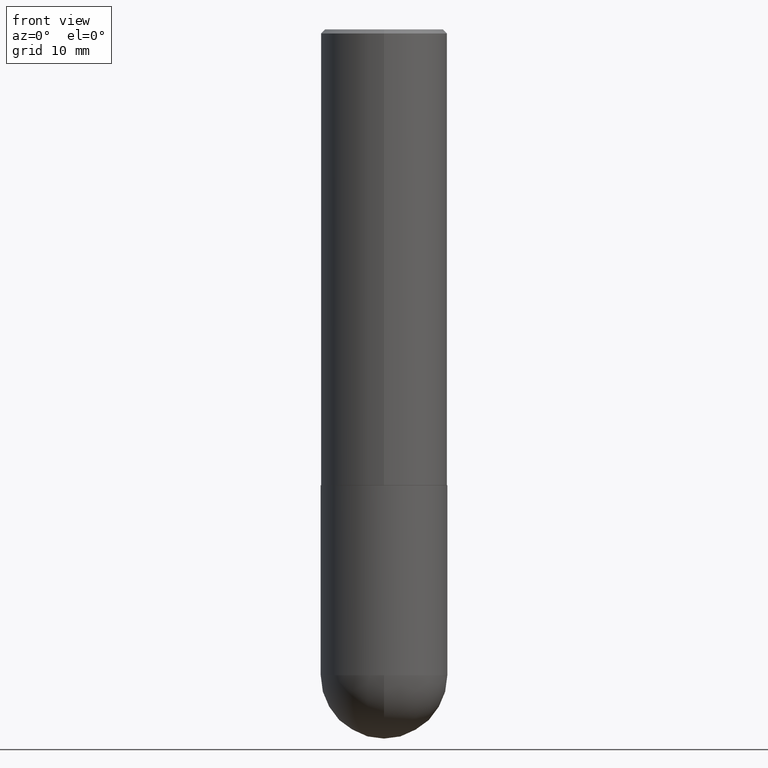
[diagram: clean part render]
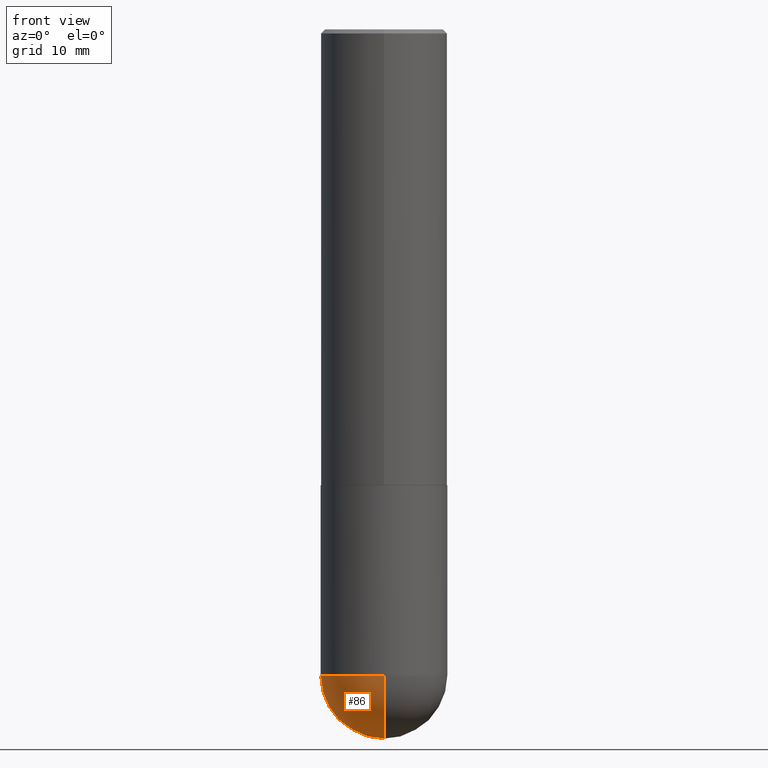
[diagram: same view with one face highlighted and labeled with its STEP entity id]
A machine part, front view. The second image highlights one B-rep face of the part: STEP entity #86.
In plain terms, the highlighted spherical surface has radius 7.9375 mm.
Its self-contained STEP definition (entity closure, byte-faithful):
#14 = VERTEX_POINT ( 'NONE', #302 ) ;
#18 = DIRECTION ( 'NONE',  ( -7.105427357601000281E-15, -1.000000000000000000, 0.000000000000000000 ) ) ;
#25 = EDGE_CURVE ( 'NONE', #72, #14, #402, .T. ) ;
#36 = AXIS2_PLACEMENT_3D ( 'NONE', #200, #167, #300 ) ;
#63 = CIRCLE ( 'NONE', #309, 0.3125000000000002776 ) ;
#72 = VERTEX_POINT ( 'NONE', #166 ) ;
#77 = CARTESIAN_POINT ( 'NONE',  ( 7.794931819715121781E-29, -1.112909676756252622E-14, -3.187500000000000000 ) ) ;
#86 = ADVANCED_FACE ( 'NONE', ( #362 ), #241, .T. ) ;
#96 = VERTEX_POINT ( 'NONE', #341 ) ;
#124 = CIRCLE ( 'NONE', #397, 0.3125000000000000000 ) ;
#127 = ORIENTED_EDGE ( 'NONE', *, *, #147, .F. ) ;
#143 = ORIENTED_EDGE ( 'NONE', *, *, #386, .T. ) ;
#147 = EDGE_CURVE ( 'NONE', #245, #72, #124, .T. ) ;
#151 = DIRECTION ( 'NONE',  ( 1.000000000000000000, -6.982962677686265922E-15, 4.883557194083112340E-29 ) ) ;
#155 = AXIS2_PLACEMENT_3D ( 'NONE', #237, #210, #398 ) ;
#166 = CARTESIAN_POINT ( 'NONE',  ( -0.3125000000000000000, -7.272018840729489255E-15, -3.187500000000000000 ) ) ;
#167 = DIRECTION ( 'NONE',  ( -2.445468806185136597E-29, 3.491481338843145583E-15, 1.000000000000000000 ) ) ;
#181 = DIRECTION ( 'NONE',  ( -1.000000000000000000, 7.105427357601001070E-15, -4.926315508542082329E-29 ) ) ;
#183 = CARTESIAN_POINT ( 'NONE',  ( 7.463812041801236655E-29, -1.160327913570257494E-14, -3.187500000000000000 ) ) ;
#187 = ORIENTED_EDGE ( 'NONE', *, *, #354, .F. ) ;
#189 = CARTESIAN_POINT ( 'NONE',  ( 2.182175836777035261E-15, 0.3124999999999887867, -3.187500000000000888 ) ) ;
#197 = AXIS2_PLACEMENT_3D ( 'NONE', #183, #151, #221 ) ;
#200 = CARTESIAN_POINT ( 'NONE',  ( 7.794931819715121781E-29, -1.112909676756252622E-14, -3.187500000000000000 ) ) ;
#210 = DIRECTION ( 'NONE',  ( -1.000000000000000000, 6.982962677686265922E-15, -4.883557194083112901E-29 ) ) ;
#221 = DIRECTION ( 'NONE',  ( 6.982962677686265922E-15, 1.000000000000000000, 0.000000000000000000 ) ) ;
#237 = CARTESIAN_POINT ( 'NONE',  ( 7.463812041801236655E-29, -1.160327913570257494E-14, -3.187500000000000000 ) ) ;
#241 = SPHERICAL_SURFACE ( 'NONE', #155, 0.3125000000000002776 ) ;
#242 = DIRECTION ( 'NONE',  ( -2.445468806185136597E-29, 3.491481338843145583E-15, 1.000000000000000000 ) ) ;
#244 = DIRECTION ( 'NONE',  ( 1.000000000000000000, -6.982962677686269077E-15, 0.000000000000000000 ) ) ;
#245 = VERTEX_POINT ( 'NONE', #189 ) ;
#300 = DIRECTION ( 'NONE',  ( 1.000000000000000000, -6.982962677686269077E-15, 0.000000000000000000 ) ) ;
#302 = CARTESIAN_POINT ( 'NONE',  ( -2.220446049250237350E-15, -0.3125000000000114908, -3.187499999999998668 ) ) ;
#309 = AXIS2_PLACEMENT_3D ( 'NONE', #373, #181, #18 ) ;
#341 = CARTESIAN_POINT ( 'NONE',  ( 8.241383017002520278E-29, -1.267523194785438148E-14, -3.500000000000000444 ) ) ;
#354 = EDGE_CURVE ( 'NONE', #96, #245, #376, .T. ) ;
#362 = FACE_OUTER_BOUND ( 'NONE', #368, .T. ) ;
#368 = EDGE_LOOP ( 'NONE', ( #187, #143, #411, #127 ) ) ;
#373 = CARTESIAN_POINT ( 'NONE',  ( 7.463812041801236655E-29, -1.160327913570257494E-14, -3.187500000000000000 ) ) ;
#376 = CIRCLE ( 'NONE', #197, 0.3125000000000002776 ) ;
#386 = EDGE_CURVE ( 'NONE', #96, #14, #63, .T. ) ;
#397 = AXIS2_PLACEMENT_3D ( 'NONE', #77, #242, #244 ) ;
#398 = DIRECTION ( 'NONE',  ( 6.982962677686265922E-15, 1.000000000000000000, -3.496765431890253764E-15 ) ) ;
#402 = CIRCLE ( 'NONE', #36, 0.3125000000000000000 ) ;
#411 = ORIENTED_EDGE ( 'NONE', *, *, #25, .F. ) ;